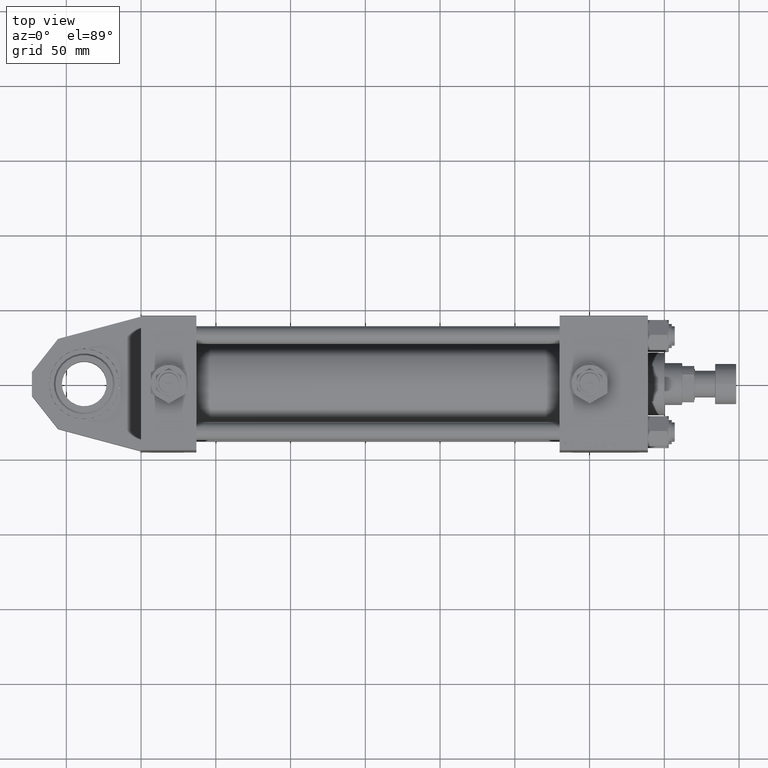
[diagram: clean part render]
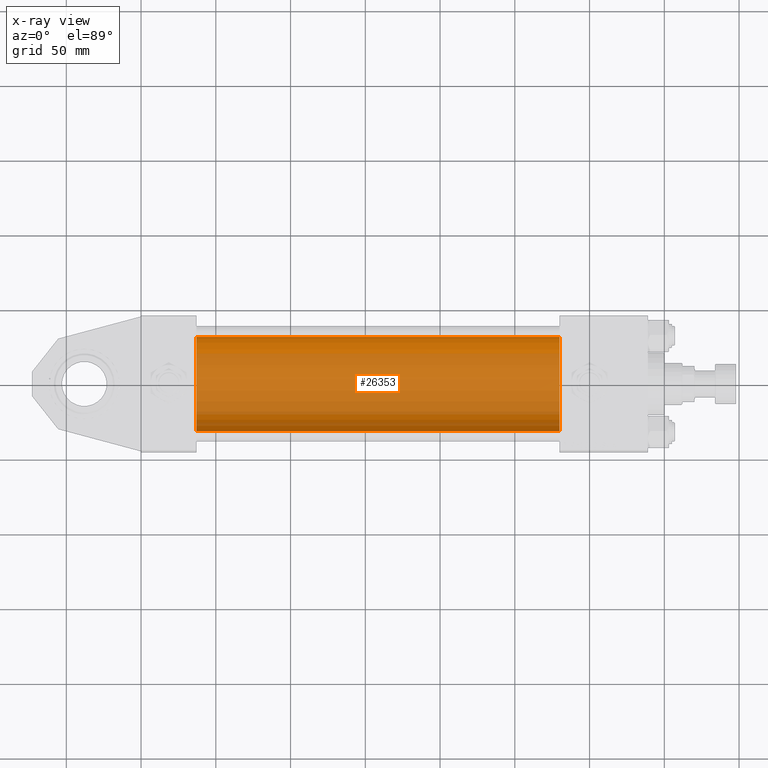
[diagram: x-ray — body ghosted, one internal face saturated and labeled with its STEP entity id]
A machine part, top view, then the same camera in x-ray: the body is ghosted and one INTERNAL B-rep face — a face not visible from any outside direction — is saturated and labeled: STEP entity #26353.
In plain terms, the highlighted cylindrical surface (partial cylindrical patch) has radius 31.5 mm, axis along (-1, 0, -0).
Its self-contained STEP definition (entity closure, byte-faithful):
#682 = DIRECTION ( 'NONE',  ( -1.000000000000000000, -0.000000000000000000, -0.000000000000000000 ) ) ;
#1813 = AXIS2_PLACEMENT_3D ( 'NONE', #42657, #26158, #20893 ) ;
#4948 = CARTESIAN_POINT ( 'NONE',  ( 279.9999999999999432, 1.255552203348951850E-15, -31.50000000000000000 ) ) ;
#5457 = CARTESIAN_POINT ( 'NONE',  ( 279.9999999999999432, 1.255552203348951850E-15, -31.50000000000000000 ) ) ;
#5558 = ORIENTED_EDGE ( 'NONE', *, *, #21776, .T. ) ;
#5614 = DIRECTION ( 'NONE',  ( -1.000000000000000000, -0.000000000000000000, -0.000000000000000000 ) ) ;
#5978 = VERTEX_POINT ( 'NONE', #47788 ) ;
#8417 = EDGE_LOOP ( 'NONE', ( #5558, #48767, #48261, #28501 ) ) ;
#9335 = CIRCLE ( 'NONE', #1813, 31.50000000000000000 ) ;
#10178 = VERTEX_POINT ( 'NONE', #29836 ) ;
#10866 = DIRECTION ( 'NONE',  ( -1.000000000000000000, -0.000000000000000000, -0.000000000000000000 ) ) ;
#12206 = VERTEX_POINT ( 'NONE', #26123 ) ;
#12820 = LINE ( 'NONE', #29058, #16054 ) ;
#16054 = VECTOR ( 'NONE', #5614, 1000.000000000000000 ) ;
#19106 = CYLINDRICAL_SURFACE ( 'NONE', #43070, 31.50000000000000000 ) ;
#20893 = DIRECTION ( 'NONE',  ( 0.000000000000000000, 0.000000000000000000, -1.000000000000000000 ) ) ;
#21776 = EDGE_CURVE ( 'NONE', #12206, #49286, #49594, .T. ) ;
#21829 = VECTOR ( 'NONE', #682, 1000.000000000000000 ) ;
#24079 = AXIS2_PLACEMENT_3D ( 'NONE', #41680, #34483, #45941 ) ;
#26123 = CARTESIAN_POINT ( 'NONE',  ( 279.9999999999999432, -2.602085213965210642E-15, 31.50000000000000000 ) ) ;
#26158 = DIRECTION ( 'NONE',  ( 1.000000000000000000, 0.000000000000000000, 0.000000000000000000 ) ) ;
#26353 = ADVANCED_FACE ( 'NONE', ( #31097 ), #19106, .F. ) ;
#27108 = DIRECTION ( 'NONE',  ( 0.000000000000000000, 0.000000000000000000, 1.000000000000000000 ) ) ;
#28501 = ORIENTED_EDGE ( 'NONE', *, *, #35968, .F. ) ;
#29058 = CARTESIAN_POINT ( 'NONE',  ( 279.9999999999999432, -2.602085213965210642E-15, 31.50000000000000000 ) ) ;
#29548 = EDGE_CURVE ( 'NONE', #49286, #10178, #41981, .T. ) ;
#29836 = CARTESIAN_POINT ( 'NONE',  ( 37.00000000000000000, 1.255552203348951850E-15, -31.50000000000000000 ) ) ;
#31097 = FACE_OUTER_BOUND ( 'NONE', #8417, .T. ) ;
#34483 = DIRECTION ( 'NONE',  ( 1.000000000000000000, 0.000000000000000000, 0.000000000000000000 ) ) ;
#35968 = EDGE_CURVE ( 'NONE', #12206, #5978, #12820, .T. ) ;
#40732 = EDGE_CURVE ( 'NONE', #5978, #10178, #9335, .T. ) ;
#41680 = CARTESIAN_POINT ( 'NONE',  ( 279.9999999999999432, -2.602085213965210642E-15, 0.000000000000000000 ) ) ;
#41981 = LINE ( 'NONE', #4948, #21829 ) ;
#42657 = CARTESIAN_POINT ( 'NONE',  ( 37.00000000000000000, -2.602085213965210642E-15, 0.000000000000000000 ) ) ;
#43070 = AXIS2_PLACEMENT_3D ( 'NONE', #47351, #10866, #27108 ) ;
#45941 = DIRECTION ( 'NONE',  ( 0.000000000000000000, 0.000000000000000000, -1.000000000000000000 ) ) ;
#47351 = CARTESIAN_POINT ( 'NONE',  ( 279.9999999999999432, -2.602085213965210642E-15, 0.000000000000000000 ) ) ;
#47788 = CARTESIAN_POINT ( 'NONE',  ( 37.00000000000000000, -2.602085213965210642E-15, 31.50000000000000000 ) ) ;
#48261 = ORIENTED_EDGE ( 'NONE', *, *, #40732, .F. ) ;
#48767 = ORIENTED_EDGE ( 'NONE', *, *, #29548, .T. ) ;
#49286 = VERTEX_POINT ( 'NONE', #5457 ) ;
#49594 = CIRCLE ( 'NONE', #24079, 31.50000000000000000 ) ;